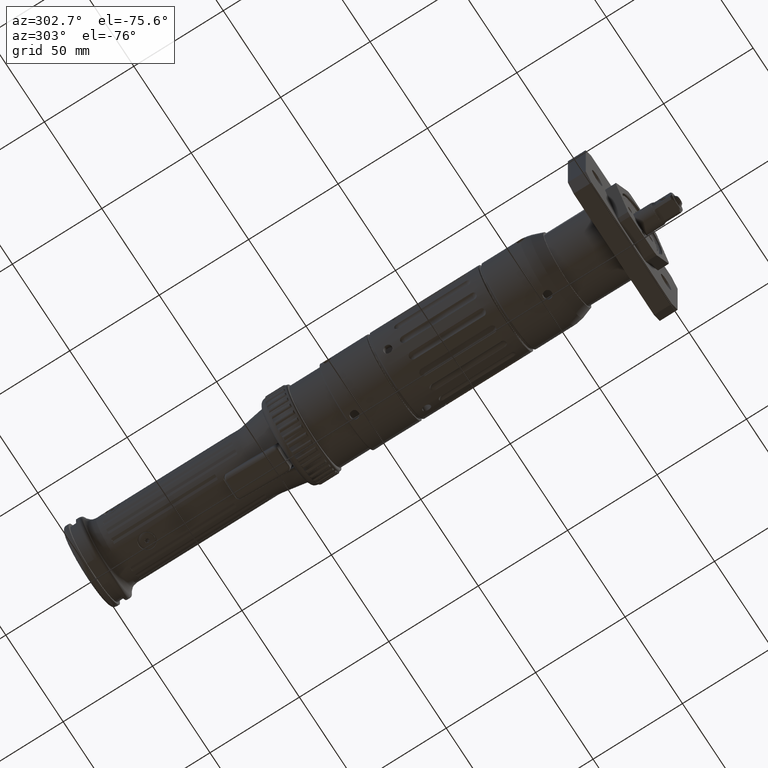
[diagram: clean part render]
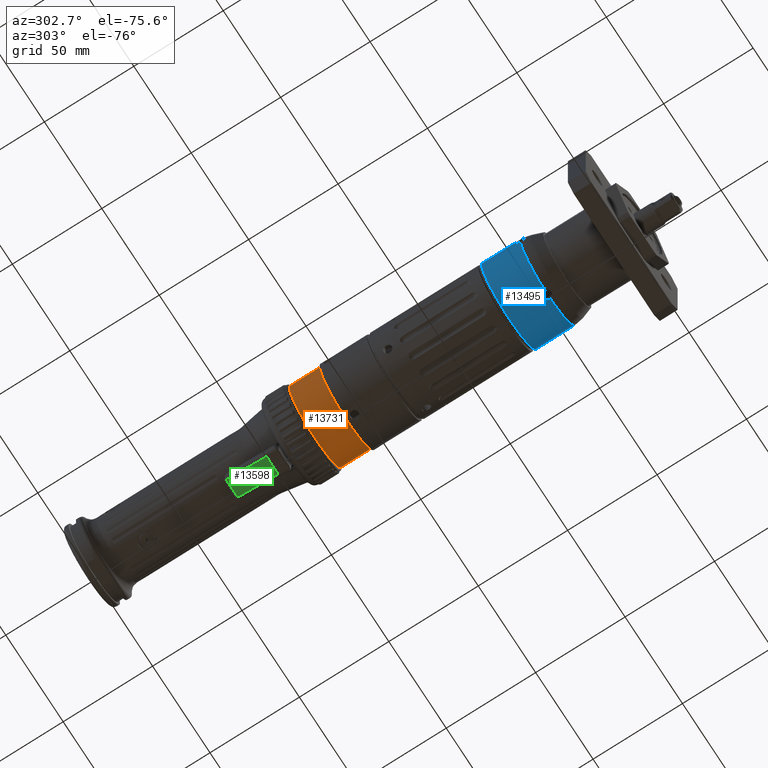
[diagram: same view with three faces highlighted in distinct colors, each labeled with its STEP entity id]
A machine part, auxiliary view with three faces highlighted in distinct colors.
Their STEP definitions:

[orange] entity #13731 — the highlighted cylindrical surface (bore or boss wall) has radius 22.75 mm, axis along (0, 1, -0).
#338=FACE_BOUND('',#2227,.T.);
#1251=FACE_OUTER_BOUND('',#2226,.T.);
#2226=EDGE_LOOP('',(#9709));
#2227=EDGE_LOOP('',(#9710));
#3156=CIRCLE('',#14825,22.75);
#3157=CIRCLE('',#14826,22.75);
#5907=VERTEX_POINT('',#22526);
#5908=VERTEX_POINT('',#22528);
#7330=EDGE_CURVE('',#5907,#5907,#3156,.T.);
#7331=EDGE_CURVE('',#5908,#5908,#3157,.T.);
#9709=ORIENTED_EDGE('',*,*,#7330,.F.);
#9710=ORIENTED_EDGE('',*,*,#7331,.T.);
#12418=CYLINDRICAL_SURFACE('',#14824,22.75);
#13731=ADVANCED_FACE('',(#1251,#338),#12418,.T.);
#14824=AXIS2_PLACEMENT_3D('',#22525,#17450,#17451);
#14825=AXIS2_PLACEMENT_3D('',#22527,#17452,#17453);
#14826=AXIS2_PLACEMENT_3D('',#22529,#17454,#17455);
#17450=DIRECTION('center_axis',(6.34883088945715E-16,1.,-2.05509997451167E-15));
#17451=DIRECTION('ref_axis',(9.575673587392E-16,-2.05509997451167E-15,-1.));
#17452=DIRECTION('center_axis',(6.34883088945715E-16,1.,-2.05509997451167E-15));
#17453=DIRECTION('ref_axis',(-1.,6.34883088945713E-16,-9.57567358739201E-16));
#17454=DIRECTION('center_axis',(6.34883088945705E-16,1.,-2.05509997451167E-15));
#17455=DIRECTION('ref_axis',(-1.,6.34883088945703E-16,-9.57567358739201E-16));
#22525=CARTESIAN_POINT('Origin',(-1.59292620627359E-13,167.700000000001,
-9.09638454072078E-14));
#22526=CARTESIAN_POINT('',(-1.31667038797742E-13,176.9,-22.7500000000001));
#22527=CARTESIAN_POINT('Origin',(-1.53451696209059E-13,176.9,-1.09870765172715E-13));
#22528=CARTESIAN_POINT('',(-1.40782216482552E-13,159.5,-22.7500000000001));
#22529=CARTESIAN_POINT('Origin',(-1.62566873893868E-13,159.5,-7.41120256162119E-14));

[blue] entity #13495 — the highlighted cylindrical surface (bore or boss wall) has radius 24 mm, axis along (0, 1, 0).
#216=FACE_BOUND('',#1869,.T.);
#1015=FACE_OUTER_BOUND('',#1868,.T.);
#1868=EDGE_LOOP('',(#8846,#8847,#8848,#8849,#8850,#8851,#8852,#8853,#8854,
#8855,#8856,#8857));
#1869=EDGE_LOOP('',(#8858));
#2982=CIRCLE('',#14410,24.);
#2983=CIRCLE('',#14411,24.);
#2984=CIRCLE('',#14412,24.);
#2985=CIRCLE('',#14413,24.);
#2986=CIRCLE('',#14414,24.);
#5369=B_SPLINE_CURVE_WITH_KNOTS('',3,(#20939,#20940,#20941,#20942,#20943,
#20944,#20945,#20946,#20947,#20948,#20949,#20950,#20951),.UNSPECIFIED.,
 .F.,.F.,(4,2,2,2,3,4),(-0.346780210802975,-0.260085282455453,-0.173390354107931,
-0.0866951770539655,0.,0.0111795925618455),.UNSPECIFIED.);
#5370=B_SPLINE_CURVE_WITH_KNOTS('',3,(#20953,#20954,#20955,#20956,#20957,
#20958,#20959,#20960,#20961,#20962,#20963,#20964),.UNSPECIFIED.,.F.,.F.,
(4,2,2,2,2,4),(-0.704740014157612,-0.693560421605951,-0.606865244551985,
-0.52017006749802,-0.433475139150498,-0.346780210802975),.UNSPECIFIED.);
#5372=B_SPLINE_CURVE_WITH_KNOTS('',3,(#20993,#20994,#20995,#20996,#20997,
#20998,#20999,#21000,#21001,#21002,#21003,#21004,#21005),.UNSPECIFIED.,
 .F.,.F.,(4,2,2,2,3,4),(-0.346780210802976,-0.260085282455453,-0.173390354107931,
-0.0866951770539657,0.,0.011179592561845),.UNSPECIFIED.);
#5373=B_SPLINE_CURVE_WITH_KNOTS('',3,(#21007,#21008,#21009,#21010,#21011,
#21012,#21013,#21014,#21015,#21016,#21017,#21018),.UNSPECIFIED.,.F.,.F.,
(4,2,2,2,2,4),(-0.704740014157611,-0.693560421605951,-0.606865244551986,
-0.52017006749802,-0.433475139150498,-0.346780210802976),.UNSPECIFIED.);
#5376=B_SPLINE_CURVE_WITH_KNOTS('',3,(#21052,#21053,#21054,#21055,#21056,
#21057,#21058,#21059,#21060,#21061,#21062,#21063,#21064),.UNSPECIFIED.,
 .F.,.F.,(4,2,2,2,3,4),(-0.346780210802976,-0.260085282455453,-0.173390354107931,
-0.0866951770539657,0.,0.011179592561845),.UNSPECIFIED.);
#5377=B_SPLINE_CURVE_WITH_KNOTS('',3,(#21066,#21067,#21068,#21069,#21070,
#21071,#21072,#21073,#21074,#21075,#21076,#21077),.UNSPECIFIED.,.F.,.F.,
(4,2,2,2,2,4),(-0.704740014157611,-0.693560421605951,-0.606865244551985,
-0.52017006749802,-0.433475139150498,-0.346780210802976),.UNSPECIFIED.);
#5379=B_SPLINE_CURVE_WITH_KNOTS('',3,(#21104,#21105,#21106,#21107,#21108,
#21109,#21110,#21111,#21112,#21113,#21114,#21115),.UNSPECIFIED.,.F.,.F.,
(4,2,2,2,2,4),(-0.704740014157611,-0.693560421605951,-0.606865244551986,
-0.52017006749802,-0.433475139150498,-0.346780210802976),.UNSPECIFIED.);
#5380=B_SPLINE_CURVE_WITH_KNOTS('',3,(#21117,#21118,#21119,#21120,#21121,
#21122,#21123,#21124,#21125,#21126,#21127,#21128,#21129),.UNSPECIFIED.,
 .F.,.F.,(4,2,2,2,3,4),(-0.346780210802976,-0.260085282455453,-0.173390354107931,
-0.0866951770539657,0.,0.011179592561845),.UNSPECIFIED.);
#5600=VERTEX_POINT('',#20937);
#5601=VERTEX_POINT('',#20938);
#5602=VERTEX_POINT('',#20952);
#5604=VERTEX_POINT('',#20991);
#5605=VERTEX_POINT('',#20992);
#5606=VERTEX_POINT('',#21006);
#5609=VERTEX_POINT('',#21050);
#5610=VERTEX_POINT('',#21051);
#5611=VERTEX_POINT('',#21065);
#5612=VERTEX_POINT('',#21101);
#5613=VERTEX_POINT('',#21103);
#5614=VERTEX_POINT('',#21116);
#5615=VERTEX_POINT('',#21133);
#6897=EDGE_CURVE('',#5600,#5601,#5369,.T.);
#6898=EDGE_CURVE('',#5602,#5600,#5370,.T.);
#6901=EDGE_CURVE('',#5604,#5605,#5372,.T.);
#6902=EDGE_CURVE('',#5606,#5604,#5373,.T.);
#6906=EDGE_CURVE('',#5609,#5610,#5376,.T.);
#6907=EDGE_CURVE('',#5611,#5609,#5377,.T.);
#6909=EDGE_CURVE('',#5612,#5601,#2982,.T.);
#6910=EDGE_CURVE('',#5612,#5613,#5379,.T.);
#6911=EDGE_CURVE('',#5613,#5614,#5380,.T.);
#6912=EDGE_CURVE('',#5611,#5614,#2983,.T.);
#6913=EDGE_CURVE('',#5606,#5610,#2984,.T.);
#6914=EDGE_CURVE('',#5602,#5605,#2985,.T.);
#6915=EDGE_CURVE('',#5615,#5615,#2986,.T.);
#8846=ORIENTED_EDGE('',*,*,#6898,.T.);
#8847=ORIENTED_EDGE('',*,*,#6897,.T.);
#8848=ORIENTED_EDGE('',*,*,#6909,.F.);
#8849=ORIENTED_EDGE('',*,*,#6910,.T.);
#8850=ORIENTED_EDGE('',*,*,#6911,.T.);
#8851=ORIENTED_EDGE('',*,*,#6912,.F.);
#8852=ORIENTED_EDGE('',*,*,#6907,.T.);
#8853=ORIENTED_EDGE('',*,*,#6906,.T.);
#8854=ORIENTED_EDGE('',*,*,#6913,.F.);
#8855=ORIENTED_EDGE('',*,*,#6902,.T.);
#8856=ORIENTED_EDGE('',*,*,#6901,.T.);
#8857=ORIENTED_EDGE('',*,*,#6914,.F.);
#8858=ORIENTED_EDGE('',*,*,#6915,.F.);
#12358=CYLINDRICAL_SURFACE('',#14409,24.);
#13495=ADVANCED_FACE('',(#1015,#216),#12358,.T.);
#14409=AXIS2_PLACEMENT_3D('',#21100,#16405,#16406);
#14410=AXIS2_PLACEMENT_3D('',#21102,#16407,#16408);
#14411=AXIS2_PLACEMENT_3D('',#21130,#16409,#16410);
#14412=AXIS2_PLACEMENT_3D('',#21131,#16411,#16412);
#14413=AXIS2_PLACEMENT_3D('',#21132,#16413,#16414);
#14414=AXIS2_PLACEMENT_3D('',#21134,#16415,#16416);
#16405=DIRECTION('center_axis',(8.42499371585531E-16,1.,1.36108718820059E-15));
#16406=DIRECTION('ref_axis',(-2.77555756156287E-16,1.39103328272989E-15,
-1.));
#16407=DIRECTION('center_axis',(-8.42499371585531E-16,-1.,-1.36108718820059E-15));
#16408=DIRECTION('ref_axis',(2.1632341619892E-16,-1.36790363638354E-15,
1.));
#16409=DIRECTION('center_axis',(-8.42499371585531E-16,-1.,-1.36108718820059E-15));
#16410=DIRECTION('ref_axis',(2.1632341619892E-16,-1.36790363638354E-15,
1.));
#16411=DIRECTION('center_axis',(-8.42499371585531E-16,-1.,-1.36108718820059E-15));
#16412=DIRECTION('ref_axis',(2.1632341619892E-16,-1.36790363638354E-15,
1.));
#16413=DIRECTION('center_axis',(-8.42499371585531E-16,-1.,-1.36108718820059E-15));
#16414=DIRECTION('ref_axis',(2.1632341619892E-16,-1.36790363638354E-15,
1.));
#16415=DIRECTION('center_axis',(8.42499371585531E-16,1.,1.36108718820059E-15));
#16416=DIRECTION('ref_axis',(2.77555756156287E-16,-1.39103328272989E-15,
1.));
#20937=CARTESIAN_POINT('',(24.0000000000002,49.3,-1.23695612563041E-13));
#20938=CARTESIAN_POINT('',(23.8898031167812,46.8873369689909,-2.29723900398814));
#20939=CARTESIAN_POINT('Ctrl Pts',(24.0000000000002,49.3000000000001,-1.2267964422108E-13));
#20940=CARTESIAN_POINT('Ctrl Pts',(24.0000000000002,49.3000000000001,-0.288983094491863));
#20941=CARTESIAN_POINT('Ctrl Pts',(23.9942458777243,49.2422103727358,-0.597107708299851));
#20942=CARTESIAN_POINT('Ctrl Pts',(23.9734459250032,49.0074315982321,-1.16372820642626));
#20943=CARTESIAN_POINT('Ctrl Pts',(23.9586954584597,48.8304522419977,-1.42223895146058));
#20944=CARTESIAN_POINT('Ctrl Pts',(23.9309693575623,48.4222383659287,-1.83045282752959));
#20945=CARTESIAN_POINT('Ctrl Pts',(23.9161892225177,48.1637278780388,-2.00743172739194));
#20946=CARTESIAN_POINT('Ctrl Pts',(23.8953213563372,47.5971082392401,-2.24221015964848));
#20947=CARTESIAN_POINT('Ctrl Pts',(23.8895374588963,47.2889839235133,-2.30000000000013));
#20948=CARTESIAN_POINT('Ctrl Pts',(23.8895374588963,47.,-2.30000000000013));
#20949=CARTESIAN_POINT('Ctrl Pts',(23.8895374588963,46.9627346914606,-2.30000000000013));
#20950=CARTESIAN_POINT('Ctrl Pts',(23.8896248009582,46.9251482178543,-2.29909337347072));
#20951=CARTESIAN_POINT('Ctrl Pts',(23.8898031167812,46.8873369689909,-2.29723900398814));
#20952=CARTESIAN_POINT('',(23.8898031167812,46.8873369689909,2.29723900398788));
#20953=CARTESIAN_POINT('Ctrl Pts',(23.8898031167812,46.8873369689909,2.29723900398788));
#20954=CARTESIAN_POINT('Ctrl Pts',(23.8896248009581,46.9251482178835,2.2990933734719));
#20955=CARTESIAN_POINT('Ctrl Pts',(23.8895374588963,46.9627346914945,2.29999999999987));
#20956=CARTESIAN_POINT('Ctrl Pts',(23.8895374588963,47.2889839235133,2.29999999999987));
#20957=CARTESIAN_POINT('Ctrl Pts',(23.8953213563372,47.5971082392401,2.24221015964823));
#20958=CARTESIAN_POINT('Ctrl Pts',(23.9161892225177,48.1637278780388,2.00743172739169));
#20959=CARTESIAN_POINT('Ctrl Pts',(23.9309693575623,48.4222383659287,1.83045282752934));
#20960=CARTESIAN_POINT('Ctrl Pts',(23.9586954584597,48.8304522419977,1.42223895146033));
#20961=CARTESIAN_POINT('Ctrl Pts',(23.9734459250032,49.0074315982321,1.16372820642601));
#20962=CARTESIAN_POINT('Ctrl Pts',(23.9942458777243,49.2422103727358,0.597107708299606));
#20963=CARTESIAN_POINT('Ctrl Pts',(24.0000000000002,49.3000000000001,0.288983094491617));
#20964=CARTESIAN_POINT('Ctrl Pts',(24.0000000000002,49.3000000000001,-1.23789867245705E-13));
#20991=CARTESIAN_POINT('',(2.33018194885785E-13,49.3,23.9999999999999));
#20992=CARTESIAN_POINT('',(2.29723900398824,46.8873369689908,23.8898031167808));
#20993=CARTESIAN_POINT('Ctrl Pts',(2.32175390024736E-13,49.3,23.9999999999999));
#20994=CARTESIAN_POINT('Ctrl Pts',(0.288983094491973,49.3,23.9999999999999));
#20995=CARTESIAN_POINT('Ctrl Pts',(0.597107708299963,49.2422103727358,23.994245877724));
#20996=CARTESIAN_POINT('Ctrl Pts',(1.16372820642637,49.0074315982321,23.9734459250029));
#20997=CARTESIAN_POINT('Ctrl Pts',(1.42223895146069,48.8304522419977,23.9586954584594));
#20998=CARTESIAN_POINT('Ctrl Pts',(1.8304528275297,48.4222383659287,23.9309693575619));
#20999=CARTESIAN_POINT('Ctrl Pts',(2.00743172739205,48.1637278780388,23.9161892225174));
#21000=CARTESIAN_POINT('Ctrl Pts',(2.24221015964859,47.5971082392401,23.8953213563369));
#21001=CARTESIAN_POINT('Ctrl Pts',(2.30000000000023,47.2889839235132,23.889537458896));
#21002=CARTESIAN_POINT('Ctrl Pts',(2.30000000000023,47.,23.889537458896));
#21003=CARTESIAN_POINT('Ctrl Pts',(2.30000000000023,46.9627346914605,23.889537458896));
#21004=CARTESIAN_POINT('Ctrl Pts',(2.29909337347082,46.9251482178543,23.8896248009578));
#21005=CARTESIAN_POINT('Ctrl Pts',(2.29723900398824,46.8873369689908,23.8898031167808));
#21006=CARTESIAN_POINT('',(-2.29723900398777,46.8873369689908,23.8898031167808));
#21007=CARTESIAN_POINT('Ctrl Pts',(-2.29723900398778,46.8873369689908,23.8898031167808));
#21008=CARTESIAN_POINT('Ctrl Pts',(-2.2990933734718,46.9251482178835,23.8896248009577));
#21009=CARTESIAN_POINT('Ctrl Pts',(-2.29999999999977,46.9627346914945,23.889537458896));
#21010=CARTESIAN_POINT('Ctrl Pts',(-2.29999999999977,47.2889839235132,23.889537458896));
#21011=CARTESIAN_POINT('Ctrl Pts',(-2.24221015964813,47.5971082392401,23.8953213563369));
#21012=CARTESIAN_POINT('Ctrl Pts',(-2.00743172739158,48.1637278780388,23.9161892225174));
#21013=CARTESIAN_POINT('Ctrl Pts',(-1.83045282752923,48.4222383659287,23.9309693575619));
#21014=CARTESIAN_POINT('Ctrl Pts',(-1.42223895146022,48.8304522419977,23.9586954584594));
#21015=CARTESIAN_POINT('Ctrl Pts',(-1.1637282064259,49.0074315982321,23.9734459250029));
#21016=CARTESIAN_POINT('Ctrl Pts',(-0.597107708299497,49.2422103727358,
23.994245877724));
#21017=CARTESIAN_POINT('Ctrl Pts',(-0.288983094491507,49.3,23.9999999999999));
#21018=CARTESIAN_POINT('Ctrl Pts',(2.32938668354166E-13,49.3,23.9999999999999));
#21050=CARTESIAN_POINT('',(-23.9999999999998,49.3000000000001,-1.16251240903446E-13));
#21051=CARTESIAN_POINT('',(-23.8898031167807,46.8873369689909,2.29723900398789));
#21052=CARTESIAN_POINT('Ctrl Pts',(-23.9999999999998,49.3000000000001,-1.17753029549306E-13));
#21053=CARTESIAN_POINT('Ctrl Pts',(-23.9999999999998,49.3000000000001,0.288983094491623));
#21054=CARTESIAN_POINT('Ctrl Pts',(-23.9942458777239,49.2422103727359,0.597107708299613));
#21055=CARTESIAN_POINT('Ctrl Pts',(-23.9734459250028,49.0074315982321,1.16372820642602));
#21056=CARTESIAN_POINT('Ctrl Pts',(-23.9586954584593,48.8304522419977,1.42223895146034));
#21057=CARTESIAN_POINT('Ctrl Pts',(-23.9309693575618,48.4222383659287,1.83045282752935));
#21058=CARTESIAN_POINT('Ctrl Pts',(-23.9161892225173,48.1637278780388,2.0074317273917));
#21059=CARTESIAN_POINT('Ctrl Pts',(-23.8953213563368,47.5971082392402,2.24221015964824));
#21060=CARTESIAN_POINT('Ctrl Pts',(-23.8895374588959,47.2889839235133,2.29999999999988));
#21061=CARTESIAN_POINT('Ctrl Pts',(-23.8895374588959,47.0000000000001,2.29999999999988));
#21062=CARTESIAN_POINT('Ctrl Pts',(-23.8895374588959,46.9627346914606,2.29999999999988));
#21063=CARTESIAN_POINT('Ctrl Pts',(-23.8896248009577,46.9251482178543,2.29909337347048));
#21064=CARTESIAN_POINT('Ctrl Pts',(-23.8898031167807,46.8873369689909,2.29723900398789));
#21065=CARTESIAN_POINT('',(-23.8898031167807,46.8873369689909,-2.29723900398813));
#21066=CARTESIAN_POINT('Ctrl Pts',(-23.8898031167807,46.8873369689909,-2.29723900398813));
#21067=CARTESIAN_POINT('Ctrl Pts',(-23.8896248009576,46.9251482178836,-2.29909337347215));
#21068=CARTESIAN_POINT('Ctrl Pts',(-23.8895374588959,46.9627346914945,-2.30000000000012));
#21069=CARTESIAN_POINT('Ctrl Pts',(-23.8895374588959,47.2889839235133,-2.30000000000012));
#21070=CARTESIAN_POINT('Ctrl Pts',(-23.8953213563368,47.5971082392402,-2.24221015964848));
#21071=CARTESIAN_POINT('Ctrl Pts',(-23.9161892225173,48.1637278780388,-2.00743172739193));
#21072=CARTESIAN_POINT('Ctrl Pts',(-23.9309693575618,48.4222383659287,-1.83045282752958));
#21073=CARTESIAN_POINT('Ctrl Pts',(-23.9586954584593,48.8304522419977,-1.42223895146057));
#21074=CARTESIAN_POINT('Ctrl Pts',(-23.9734459250028,49.0074315982321,-1.16372820642625));
#21075=CARTESIAN_POINT('Ctrl Pts',(-23.9942458777239,49.2422103727359,-0.597107708299845));
#21076=CARTESIAN_POINT('Ctrl Pts',(-23.9999999999998,49.3000000000001,-0.288983094491857));
#21077=CARTESIAN_POINT('Ctrl Pts',(-23.9999999999998,49.3000000000001,-1.17267306976032E-13));
#21100=CARTESIAN_POINT('Origin',(2.35464129044065E-13,56.621216129182,-1.1125894758647E-13));
#21101=CARTESIAN_POINT('',(2.29723900398823,46.8873369689909,-23.8898031167811));
#21102=CARTESIAN_POINT('Origin',(2.27263341968514E-13,46.8873369689909,
-1.24507605802898E-13));
#21103=CARTESIAN_POINT('',(2.22634670908236E-13,49.3000000000001,-24.0000000000001));
#21104=CARTESIAN_POINT('Ctrl Pts',(2.29723900398823,46.8873369689909,-23.8898031167811));
#21105=CARTESIAN_POINT('Ctrl Pts',(2.29909337347225,46.9251482178836,-23.889624800958));
#21106=CARTESIAN_POINT('Ctrl Pts',(2.30000000000022,46.9627346914946,-23.8895374588962));
#21107=CARTESIAN_POINT('Ctrl Pts',(2.30000000000022,47.2889839235133,-23.8895374588962));
#21108=CARTESIAN_POINT('Ctrl Pts',(2.24221015964858,47.5971082392402,-23.8953213563371));
#21109=CARTESIAN_POINT('Ctrl Pts',(2.00743172739204,48.1637278780389,-23.9161892225176));
#21110=CARTESIAN_POINT('Ctrl Pts',(1.83045282752969,48.4222383659287,-23.9309693575622));
#21111=CARTESIAN_POINT('Ctrl Pts',(1.42223895146068,48.8304522419978,-23.9586954584596));
#21112=CARTESIAN_POINT('Ctrl Pts',(1.16372820642636,49.0074315982321,-23.9734459250031));
#21113=CARTESIAN_POINT('Ctrl Pts',(0.597107708299951,49.2422103727359,-23.9942458777242));
#21114=CARTESIAN_POINT('Ctrl Pts',(0.288983094491963,49.3000000000001,-24.0000000000001));
#21115=CARTESIAN_POINT('Ctrl Pts',(2.22530327498305E-13,49.3000000000001,
-24.0000000000001));
#21116=CARTESIAN_POINT('',(-2.29723900398778,46.8873369689909,-23.8898031167811));
#21117=CARTESIAN_POINT('Ctrl Pts',(2.23224216888696E-13,49.3000000000001,
-24.0000000000001));
#21118=CARTESIAN_POINT('Ctrl Pts',(-0.288983094491518,49.3000000000001,
-24.0000000000001));
#21119=CARTESIAN_POINT('Ctrl Pts',(-0.597107708299506,49.2422103727359,
-23.9942458777242));
#21120=CARTESIAN_POINT('Ctrl Pts',(-1.16372820642591,49.0074315982321,-23.9734459250031));
#21121=CARTESIAN_POINT('Ctrl Pts',(-1.42223895146023,48.8304522419978,-23.9586954584596));
#21122=CARTESIAN_POINT('Ctrl Pts',(-1.83045282752924,48.4222383659287,-23.9309693575622));
#21123=CARTESIAN_POINT('Ctrl Pts',(-2.00743172739159,48.1637278780389,-23.9161892225176));
#21124=CARTESIAN_POINT('Ctrl Pts',(-2.24221015964814,47.5971082392402,-23.8953213563371));
#21125=CARTESIAN_POINT('Ctrl Pts',(-2.29999999999978,47.2889839235133,-23.8895374588962));
#21126=CARTESIAN_POINT('Ctrl Pts',(-2.29999999999978,47.0000000000001,-23.8895374588962));
#21127=CARTESIAN_POINT('Ctrl Pts',(-2.29999999999978,46.9627346914606,-23.8895374588962));
#21128=CARTESIAN_POINT('Ctrl Pts',(-2.29909337347037,46.9251482178544,-23.8896248009581));
#21129=CARTESIAN_POINT('Ctrl Pts',(-2.29723900398778,46.8873369689909,-23.8898031167811));
#21130=CARTESIAN_POINT('Origin',(2.27263341968514E-13,46.8873369689909,
-1.24507605802898E-13));
#21131=CARTESIAN_POINT('Origin',(2.27263341968514E-13,46.8873369689909,
-1.24507605802898E-13));
#21132=CARTESIAN_POINT('Origin',(2.27263341968514E-13,46.8873369689909,
-1.24507605802898E-13));
#21133=CARTESIAN_POINT('',(2.35871506524725E-13,68.5000000000001,-24.0000000000001));
#21134=CARTESIAN_POINT('Origin',(2.45471996990429E-13,68.5000000000001,
-9.50908870484953E-14));

[green] entity #13598 — the highlighted cylindrical surface (partial cylindrical patch) has radius 23 mm, axis along (0, 0.9877, 0.1564).
#116=ELLIPSE('',#14604,1.59425215632421,1.48620424418539);
#121=ELLIPSE('',#14618,23.071120565105,23.);
#123=ELLIPSE('',#14621,23.2624471063013,23.);
#124=ELLIPSE('',#14622,1.59425215633041,1.4862042441972);
#1118=FACE_OUTER_BOUND('',#2054,.T.);
#2054=EDGE_LOOP('',(#9134,#9135,#9136,#9137,#9138,#9139));
#3915=LINE('',#21637,#4695);
#3918=LINE('',#21677,#4698);
#4695=VECTOR('',#16837,10.);
#4698=VECTOR('',#16856,10.);
#5721=VERTEX_POINT('',#21525);
#5722=VERTEX_POINT('',#21527);
#5726=VERTEX_POINT('',#21633);
#5728=VERTEX_POINT('',#21667);
#5730=VERTEX_POINT('',#21673);
#5731=VERTEX_POINT('',#21675);
#7036=EDGE_CURVE('',#5721,#5722,#116,.T.);
#7047=EDGE_CURVE('',#5722,#5726,#3915,.T.);
#7051=EDGE_CURVE('',#5728,#5726,#121,.T.);
#7054=EDGE_CURVE('',#5730,#5721,#123,.T.);
#7055=EDGE_CURVE('',#5731,#5730,#124,.T.);
#7056=EDGE_CURVE('',#5728,#5731,#3918,.T.);
#9134=ORIENTED_EDGE('',*,*,#7047,.F.);
#9135=ORIENTED_EDGE('',*,*,#7036,.F.);
#9136=ORIENTED_EDGE('',*,*,#7054,.F.);
#9137=ORIENTED_EDGE('',*,*,#7055,.F.);
#9138=ORIENTED_EDGE('',*,*,#7056,.F.);
#9139=ORIENTED_EDGE('',*,*,#7051,.T.);
#12401=CYLINDRICAL_SURFACE('',#14620,23.);
#13598=ADVANCED_FACE('',(#1118),#12401,.T.);
#14604=AXIS2_PLACEMENT_3D('',#21528,#16814,#16815);
#14618=AXIS2_PLACEMENT_3D('',#21668,#16845,#16846);
#14620=AXIS2_PLACEMENT_3D('',#21672,#16850,#16851);
#14621=AXIS2_PLACEMENT_3D('',#21674,#16852,#16853);
#14622=AXIS2_PLACEMENT_3D('',#21676,#16854,#16855);
#16814=DIRECTION('center_axis',(0.206268353877614,-0.080685183862993,0.975163200338084));
#16815=DIRECTION('ref_axis',(0.971960716920872,-0.0980902549513903,-0.213706964430819));
#16837=DIRECTION('',(-3.99370440445492E-16,-0.987688340595138,-0.15643446504023));
#16845=DIRECTION('center_axis',(4.76963721246173E-16,0.996917333733128,
0.0784590957278435));
#16846=DIRECTION('ref_axis',(1.09639727272703E-14,-0.0784590957278435,0.996917333733128));
#16850=DIRECTION('center_axis',(3.99370440445492E-16,0.987688340595138,
0.15643446504023));
#16851=DIRECTION('ref_axis',(0.891835984938701,0.0707645227972883,-0.446789612996642));
#16852=DIRECTION('center_axis',(5.84304104023498E-16,0.999977388519457,
0.00672476392209901));
#16853=DIRECTION('ref_axis',(-4.95414987129273E-15,0.00672476392209901,
-0.999977388519457));
#16854=DIRECTION('center_axis',(-0.206268353877635,-0.0806851838632257,
0.97516320033806));
#16855=DIRECTION('ref_axis',(0.971960716920465,0.0980902549548751,0.213706964431071));
#16856=DIRECTION('',(3.99370440445492E-16,0.987688340595138,0.15643446504023));
#21525=CARTESIAN_POINT('',(-4.70454545454557,223.45312698158,-18.9417824086726));
#21527=CARTESIAN_POINT('',(-5.04878048780498,223.41603362443,-18.8720382783649));
#21528=CARTESIAN_POINT('Origin',(-4.70560084724021,221.970689445938,-19.0642163263733));
#21633=CARTESIAN_POINT('',(-5.048780487805,200.894969657728,-22.439024390244));
#21637=CARTESIAN_POINT('',(-5.04878048780498,224.212244080588,-18.7459309308858));
#21667=CARTESIAN_POINT('',(5.04878048780476,200.894969657728,-22.439024390244));
#21668=CARTESIAN_POINT('Origin',(-1.40706880036052E-13,199.128980138737,
-1.3988810110277E-13));
#21672=CARTESIAN_POINT('Origin',(-1.31983855771564E-13,220.702007304075,
3.41683183368799));
#21673=CARTESIAN_POINT('',(4.70454545454534,223.45312698158,-18.9417824086726));
#21674=CARTESIAN_POINT('Origin',(-1.30933360949867E-13,223.300000000001,
3.82831345279935));
#21675=CARTESIAN_POINT('',(5.04878048780477,223.41603362443,-18.8720382783649));
#21676=CARTESIAN_POINT('Origin',(4.70560084724058,221.970689445926,-19.0642163263745));
#21677=CARTESIAN_POINT('',(5.04878048780477,224.212244080588,-18.7459309308858));